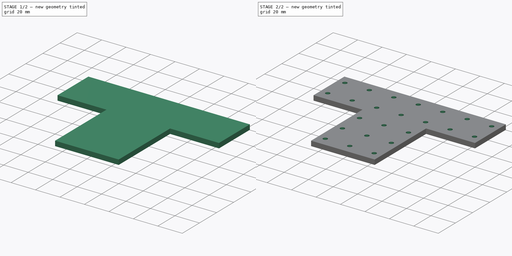
[diagram: build sequence overview — one tinted view per stage of 2, left to right]
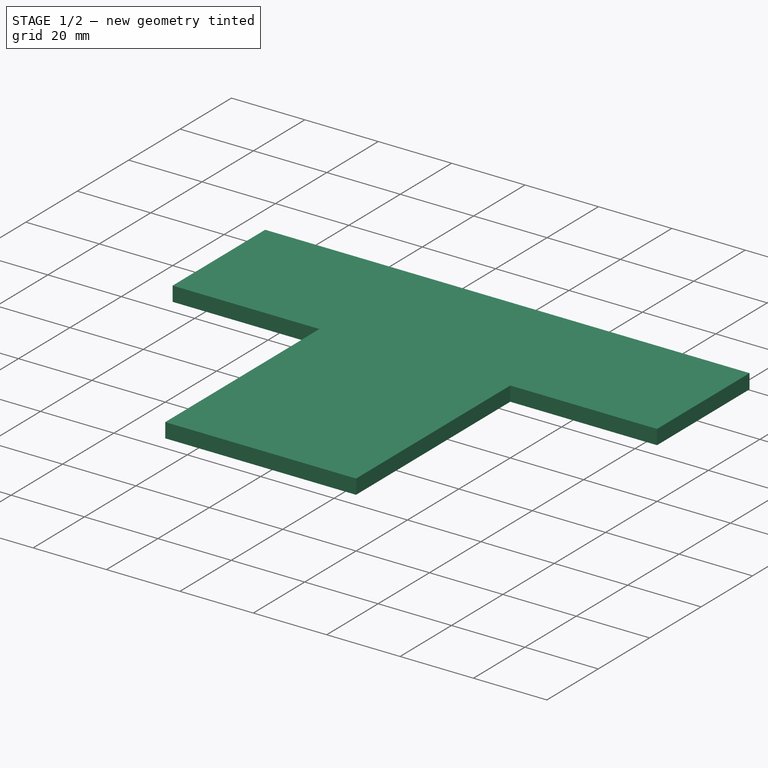
[diagram: stage 1 of 2 — iso view after this stage's code; geometry added in this stage tinted green]
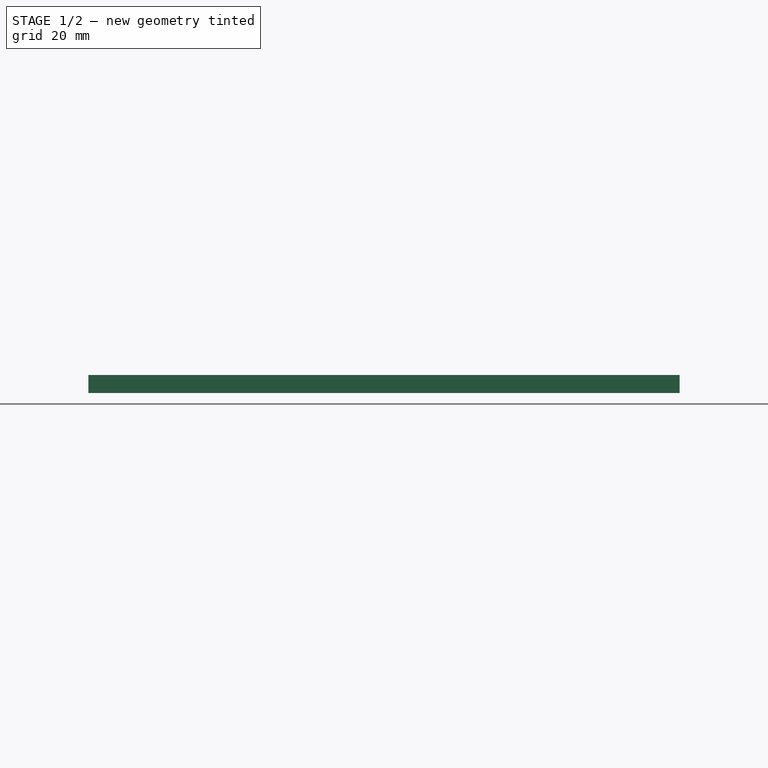
[diagram: stage 1 of 2 — front view after this stage's code; geometry added in this stage tinted green]
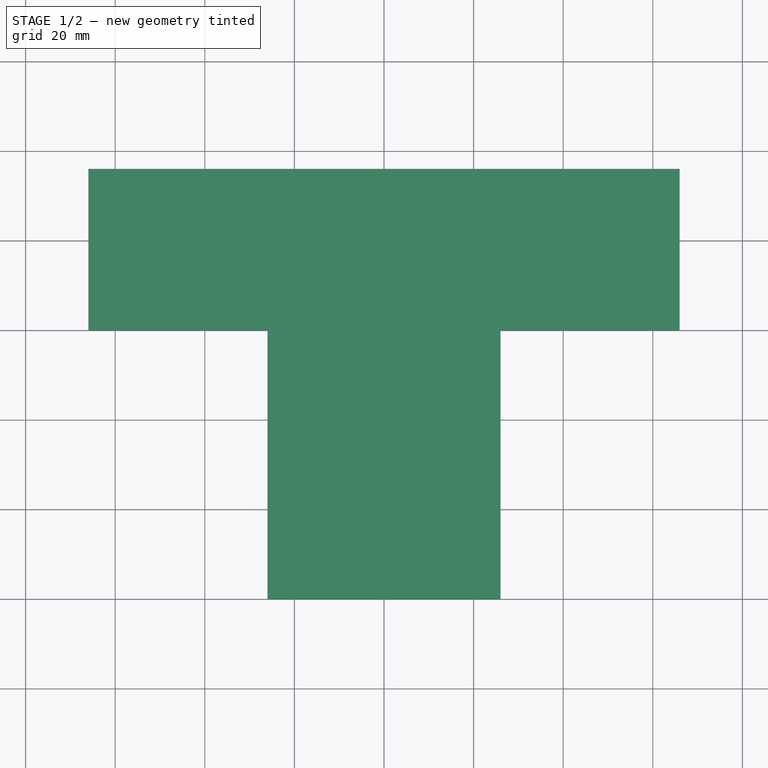
[diagram: stage 1 of 2 — top view after this stage's code; geometry added in this stage tinted green]
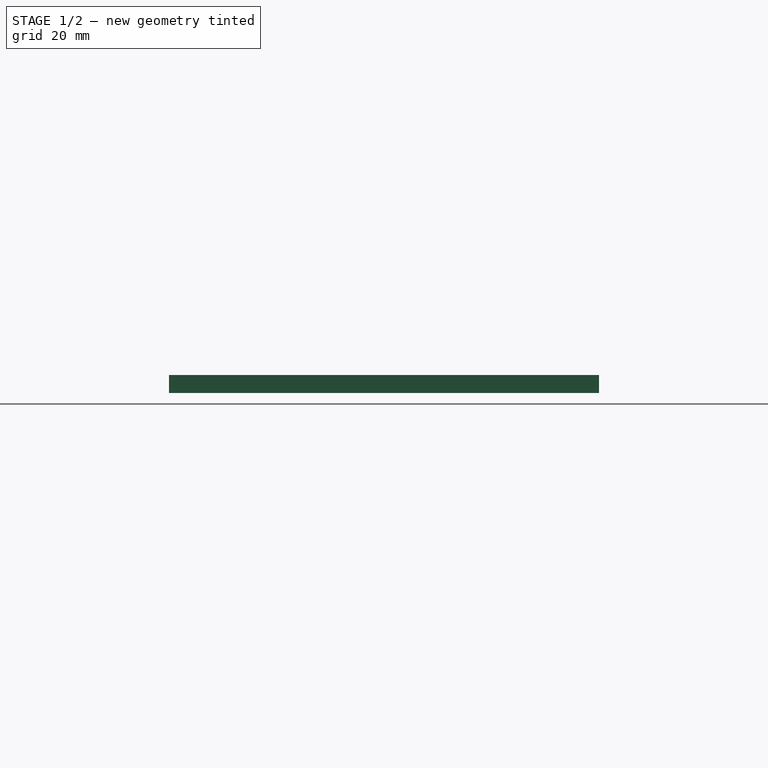
[diagram: stage 1 of 2 — right view after this stage's code; geometry added in this stage tinted green]
FCSTD DOCUMENT  (FreeCAD 0.21R33694 (Git))
Label: _mod_basePlate
License: All rights reserved
LicenseURL: http://en.wikipedia.org/wiki/All_rights_reserved
objects: Sketcher::SketchObject×2, PartDesign::Pad×1, PartDesign::Pocket×1, PartDesign::Body×1
note: 7 computed .brp shape members not serialized (recipe doc carries the construction recipe); baked Part::Feature solids carry a one-line shape summary decoded from their .brp

FEATURE [Sketcher::SketchObject] Sketch
  FullyConstrained = true
  MapMode = 5
  Support = -> [XY_Plane]
  sketch-geometry (8):
    g0: LineSegment StartX=-66 StartY=0 StartZ=0 EndX=-66 EndY=36 EndZ=0
    g1: LineSegment StartX=-66 StartY=36 StartZ=0 EndX=66 EndY=36 EndZ=0
    g2: LineSegment StartX=66 StartY=36 StartZ=0 EndX=66 EndY=0 EndZ=0
    g3: LineSegment StartX=66 StartY=0 StartZ=0 EndX=26 EndY=0 EndZ=0
    g4: LineSegment StartX=26 StartY=0 StartZ=0 EndX=26 EndY=-60 EndZ=0
    g5: LineSegment StartX=26 StartY=-60 StartZ=0 EndX=-26 EndY=-60 EndZ=0
    g6: LineSegment StartX=-26 StartY=-60 StartZ=0 EndX=-26 EndY=0 EndZ=0
    g7: LineSegment StartX=-26 StartY=0 StartZ=0 EndX=-66 EndY=0 EndZ=0
  constraints (24):
    c: PointOnObject(g0,g-1)
    c: Coincident(g1,g0)
    c: Coincident(g2,g1)
    c: Coincident(g3,g2)
    c: Horizontal(g3)
    c: Coincident(g4,g3)
    c: Vertical(g4)
    c: Coincident(g5,g4)
    c: Horizontal(g5)
    c: Coincident(g6,g5)
    c: Vertical(g6)
    c: Coincident(g7,g6)
    c: Coincident(g7,g0)
    c: Vertical(g0)
    c: Vertical(g2)
    c: Horizontal(g1)
    c: Horizontal(g7)
    c: DistanceX(g-1,g3) = 26
    c: DistanceX(g6,g-1) = 26
    c: DistanceY(g3,g-1) = 0
    c: DistanceX(g3,g2) = 40
    c: DistanceX(g0,g6) = 40
    c: DistanceY(g2,g1) = 36
    c: DistanceY(g4,g-1) = 60
FEATURE [PartDesign::Pad] Pad
  Direction = (0,0,1)
  Length = 4
  Length2 = 10
  Profile = -> Sketch
  ReferenceAxis = -> Sketch [N_Axis]
  Type = 0
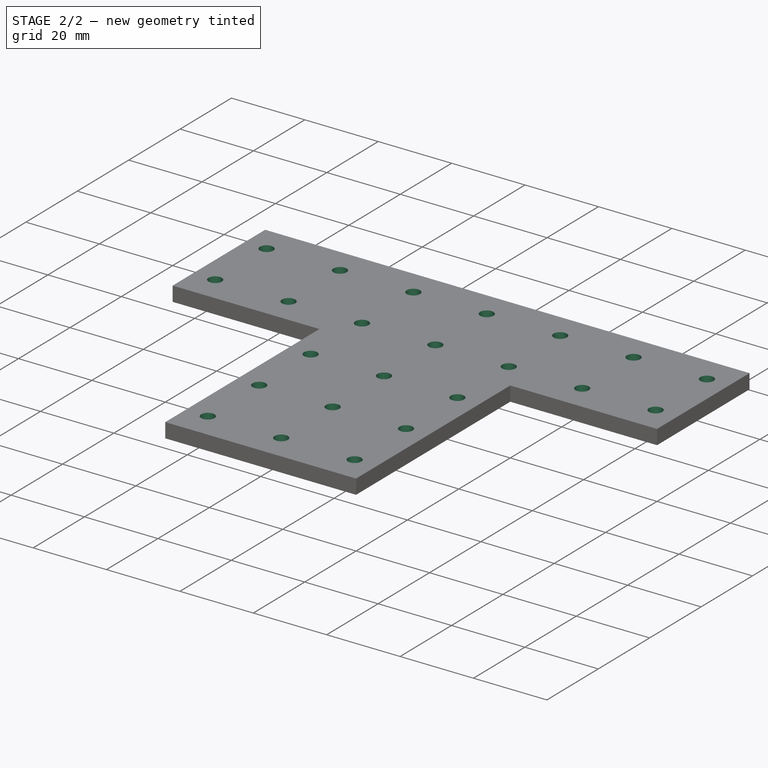
[diagram: stage 2 of 2 — iso view after this stage's code; geometry added in this stage tinted green]
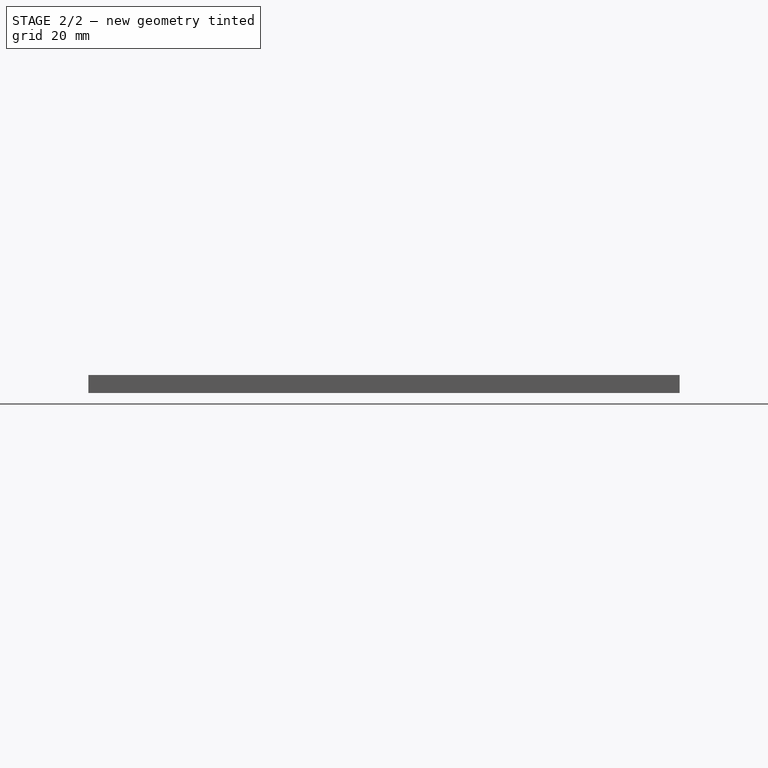
[diagram: stage 2 of 2 — front view after this stage's code; geometry added in this stage tinted green]
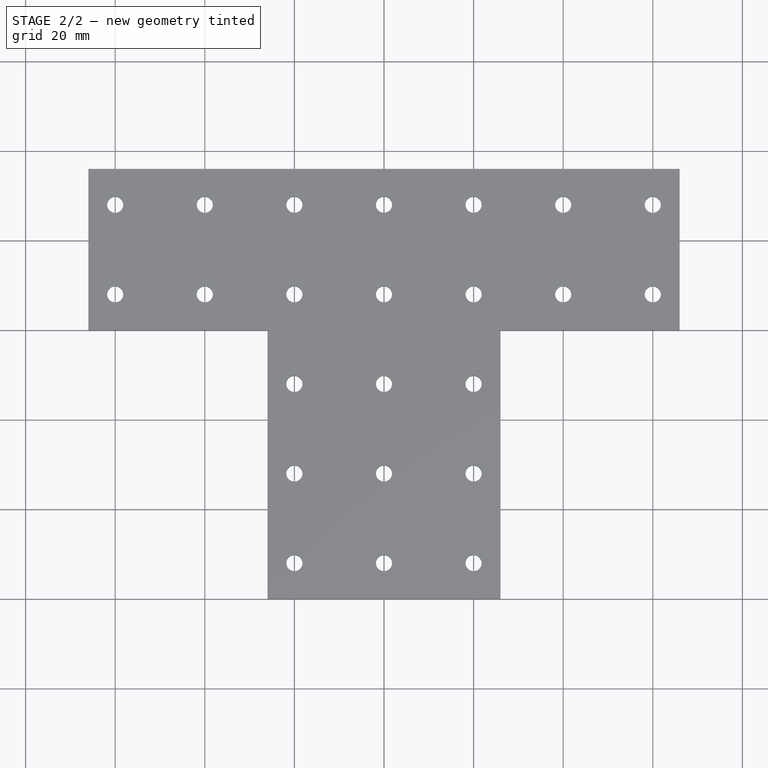
[diagram: stage 2 of 2 — top view after this stage's code; geometry added in this stage tinted green]
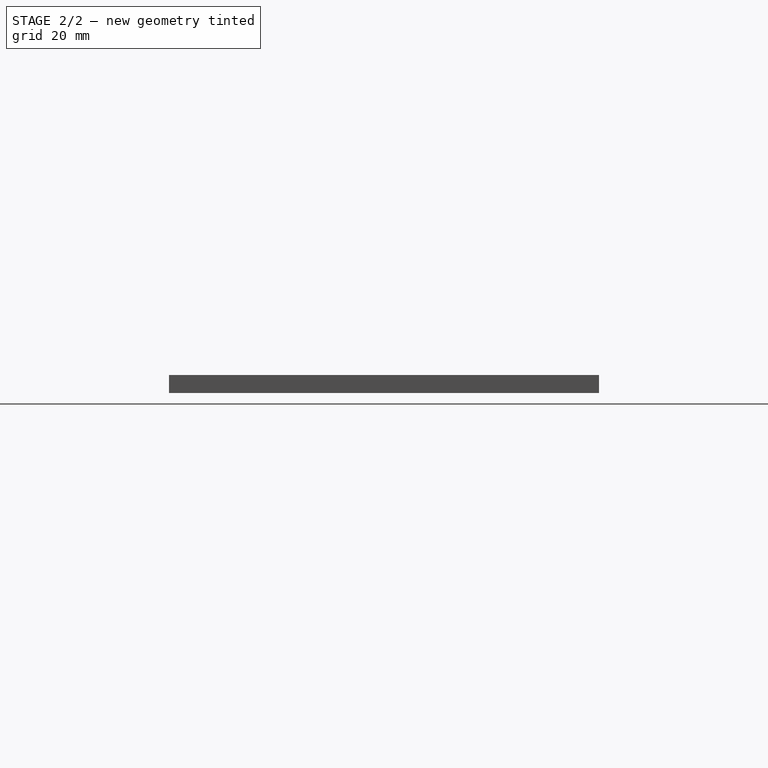
[diagram: stage 2 of 2 — right view after this stage's code; geometry added in this stage tinted green]
FEATURE [Sketcher::SketchObject] Sketch001
  FullyConstrained = true
  MapMode = 5
  Placement = pos=(0,0,4) rot=(0,0,1;0rad)
  Support = -> [Pad]
  sketch-geometry (23):
    g0: Circle CenterX=-60 CenterY=28 CenterZ=0 NormalX=0 NormalY=0 NormalZ=1 AngleXU=0 Radius=1.8
    g1: Circle CenterX=-40 CenterY=28 CenterZ=0 NormalX=0 NormalY=0 NormalZ=1 AngleXU=0 Radius=1.8
    g2: Circle CenterX=-60 CenterY=8 CenterZ=0 NormalX=0 NormalY=0 NormalZ=1 AngleXU=0 Radius=1.8
    g3: Circle CenterX=-40 CenterY=8 CenterZ=0 NormalX=0 NormalY=0 NormalZ=1 AngleXU=0 Radius=1.8
    g4: Circle CenterX=40 CenterY=28 CenterZ=0 NormalX=0 NormalY=0 NormalZ=1 AngleXU=0 Radius=1.8
    g5: Circle CenterX=40 CenterY=8 CenterZ=0 NormalX=0 NormalY=0 NormalZ=1 AngleXU=0 Radius=1.8
    g6: Circle CenterX=60 CenterY=28 CenterZ=0 NormalX=0 NormalY=0 NormalZ=1 AngleXU=0 Radius=1.8
    g7: Circle CenterX=60 CenterY=8 CenterZ=0 NormalX=0 NormalY=0 NormalZ=1 AngleXU=0 Radius=1.8
    g8: Circle CenterX=-20 CenterY=-52 CenterZ=0 NormalX=0 NormalY=0 NormalZ=1 AngleXU=0 Radius=1.8
    g9: Circle CenterX=0 CenterY=-52 CenterZ=0 NormalX=0 NormalY=0 NormalZ=1 AngleXU=0 Radius=1.8
    g10: Circle CenterX=20 CenterY=-52 CenterZ=0 NormalX=0 NormalY=0 NormalZ=1 AngleXU=0 Radius=1.8
    g11: Circle CenterX=-20 CenterY=-32 CenterZ=0 NormalX=0 NormalY=0 NormalZ=1 AngleXU=0 Radius=1.8
    g12: Circle CenterX=0 CenterY=-32 CenterZ=0 NormalX=0 NormalY=0 NormalZ=1 AngleXU=0 Radius=1.8
    g13: Circle CenterX=20 CenterY=-32 CenterZ=0 NormalX=0 NormalY=0 NormalZ=1 AngleXU=0 Radius=1.8
    g14: Circle CenterX=-20 CenterY=-12 CenterZ=0 NormalX=0 NormalY=0 NormalZ=1 AngleXU=0 Radius=1.8
    g15: Circle CenterX=0 CenterY=-12 CenterZ=0 NormalX=0 NormalY=0 NormalZ=1 AngleXU=0 Radius=1.8
    g16: Circle CenterX=20 CenterY=-12 CenterZ=0 NormalX=0 NormalY=0 NormalZ=1 AngleXU=0 Radius=1.8
    g17: Circle CenterX=20 CenterY=8 CenterZ=0 NormalX=0 NormalY=0 NormalZ=1 AngleXU=0 Radius=1.8
    g18: Circle CenterX=0 CenterY=8 CenterZ=0 NormalX=0 NormalY=0 NormalZ=1 AngleXU=0 Radius=1.8
    g19: Circle CenterX=-20 CenterY=8 CenterZ=0 NormalX=0 NormalY=0 NormalZ=1 AngleXU=0 Radius=1.8
    g20: Circle CenterX=-20 CenterY=28 CenterZ=0 NormalX=0 NormalY=0 NormalZ=1 AngleXU=0 Radius=1.8
    g21: Circle CenterX=0 CenterY=28 CenterZ=0 NormalX=0 NormalY=0 NormalZ=1 AngleXU=0 Radius=1.8
    g22: Circle CenterX=20 CenterY=28 CenterZ=0 NormalX=0 NormalY=0 NormalZ=1 AngleXU=0 Radius=1.8
  constraints (69):
    c: Radius(g0) = 1.8
    c: Radius(g1) = 1.8
    c: Radius(g2) = 1.8
    c: Radius(g3) = 1.8
    c: Radius(g19) = 1.8
    c: Radius(g20) = 1.8
    c: Radius(g21) = 1.8
    c: Radius(g18) = 1.8
    c: Radius(g17) = 1.8
    c: Radius(g22) = 1.8
    c: Radius(g4) = 1.8
    c: Radius(g5) = 1.8
    c: Radius(g7) = 1.8
    c: Radius(g6) = 1.8
    c: Radius(g14) = 1.8
    c: Radius(g15) = 1.8
    c: Radius(g16) = 1.8
    c: Radius(g11) = 1.8
    c: Radius(g8) = 1.8
    c: Radius(g10) = 1.8
    c: Radius(g9) = 1.8
    c: Radius(g12) = 1.8
    c: Radius(g13) = 1.8
    c: DistanceY(g0,g1) = 0
    c: DistanceY(g1,g20) = 0
    c: DistanceY(g20,g21) = 0
    c: DistanceY(g21,g22) = 0
    c: DistanceY(g22,g4) = 0
    c: DistanceY(g4,g6) = 0
    c: DistanceY(g7,g5) = 0
    c: DistanceY(g17,g5) = 0
    c: DistanceY(g18,g17) = 0
    c: DistanceY(g19,g18) = 0
    c: DistanceY(g3,g19) = 0
    c: DistanceY(g2,g3) = 0
    c: DistanceY(g14,g15) = 0
    c: DistanceY(g15,g16) = 0
    c: DistanceY(g11,g12) = 0
    c: DistanceY(g12,g13) = 0
    c: DistanceY(g8,g9) = 0
    c: DistanceY(g9,g10) = 0
    c: DistanceX(g10,g13) = 0
    c: DistanceX(g13,g16) = 0
    c: DistanceX(g16,g17) = 0
    c: DistanceX(g17,g22) = 0
    c: DistanceX(g5,g4) = 0
    c: DistanceX(g7,g6) = 0
    c: DistanceX(g21,g18) = 0
    c: DistanceX(g18,g15) = 0
    c: DistanceX(g15,g12) = 0
    c: DistanceX(g12,g9) = 0
    c: DistanceX(g8,g11) = 0
    c: DistanceX(g11,g14) = 0
    c: DistanceX(g14,g19) = 0
    c: DistanceX(g19,g20) = 0
    c: DistanceX(g1,g3) = 0
    c: DistanceX(g0,g2) = 0
    c: DistanceX(g0,g1) = 20
    c: DistanceX(g1,g20) = 20
    c: DistanceX(g20,g21) = 20
    c: DistanceX(g21,g22) = 20
    c: DistanceX(g22,g4) = 20
    c: DistanceX(g4,g6) = 20
    c: DistanceY(g2,g0) = 20
    c: DistanceY(g-1,g19) = 8
    c: DistanceX(g-1,g18) = 0
    c: DistanceY(g15,g-1) = 12
    c: DistanceY(g12,g15) = 20
    c: DistanceY(g9,g12) = 20
FEATURE [PartDesign::Pocket] Pocket
  BaseFeature = -> Pad
  Direction = (0,0,-1)
  Length = 5
  Length2 = 5
  Profile = -> Sketch001
  ReferenceAxis = -> Sketch001 [N_Axis]
  Type = 0
FEATURE [PartDesign::Body] Body
  Group = -> [Sketch,Pad,Sketch001,Pocket]
  Origin = -> Origin
  Tip = -> Pocket
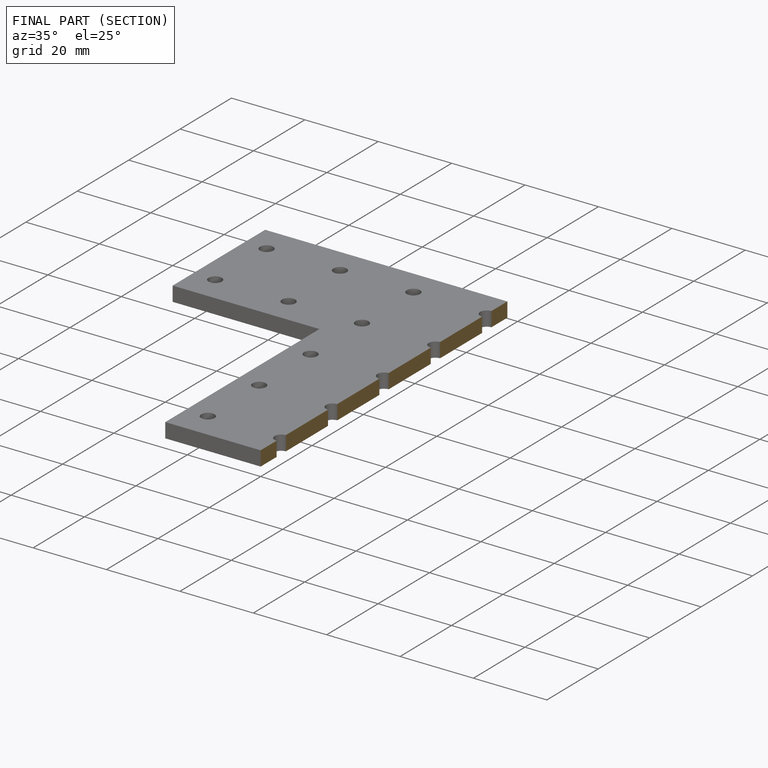
[diagram: finished part — half-section view (interior)]
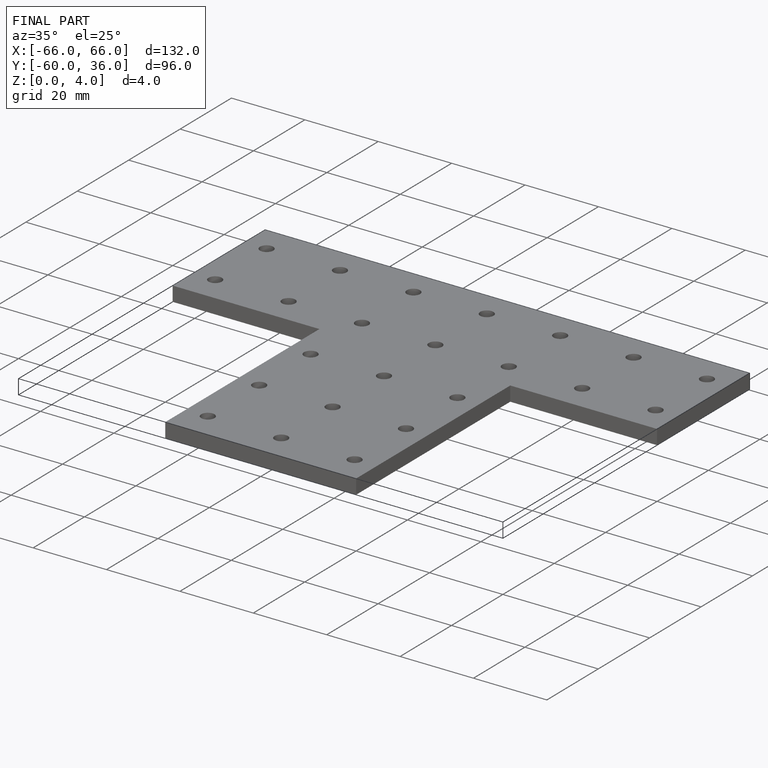
[diagram: finished part — iso view with bounding-box wireframe]
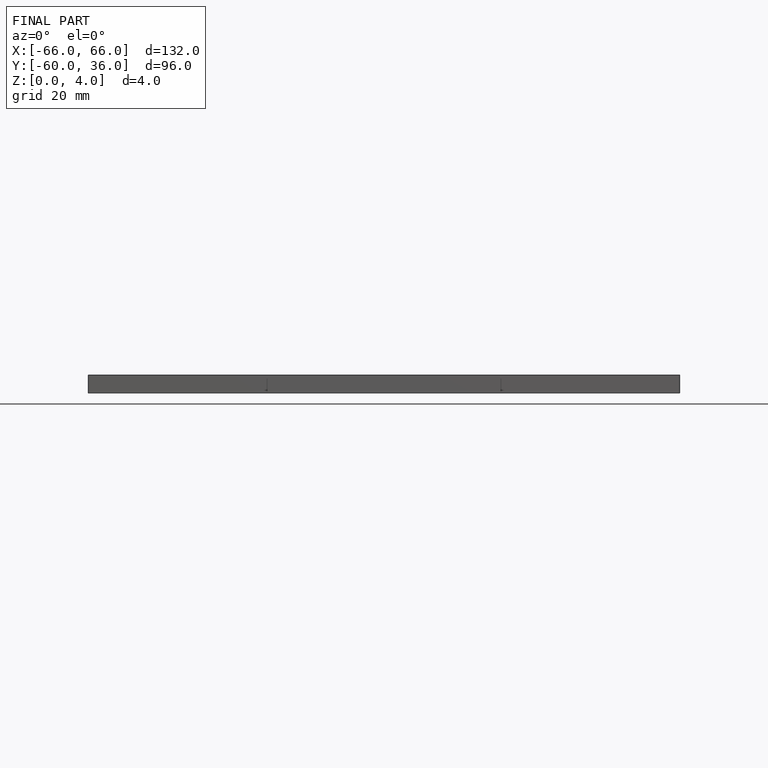
[diagram: finished part — front view with bounding-box wireframe]
